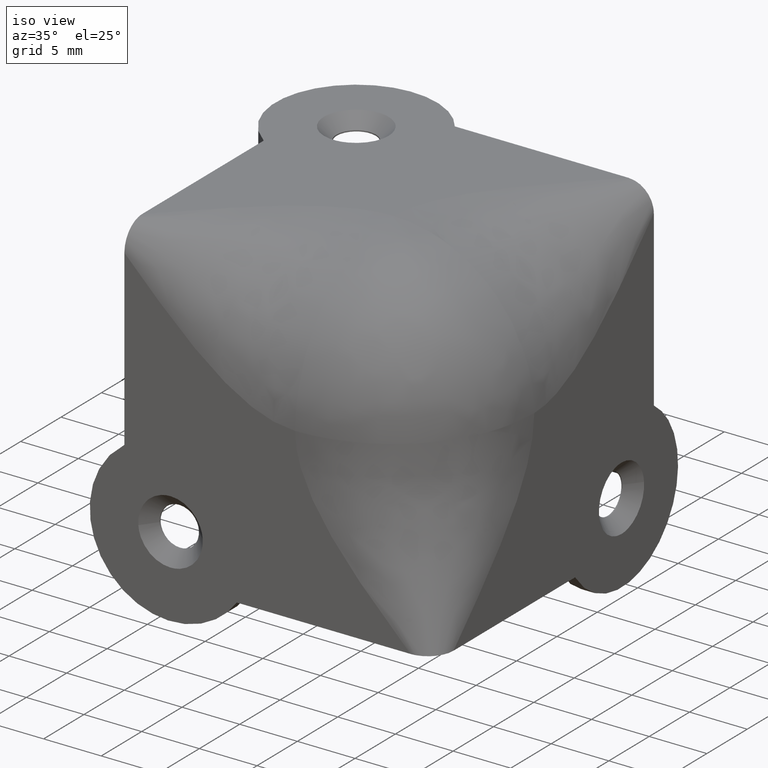
[diagram: clean part render]
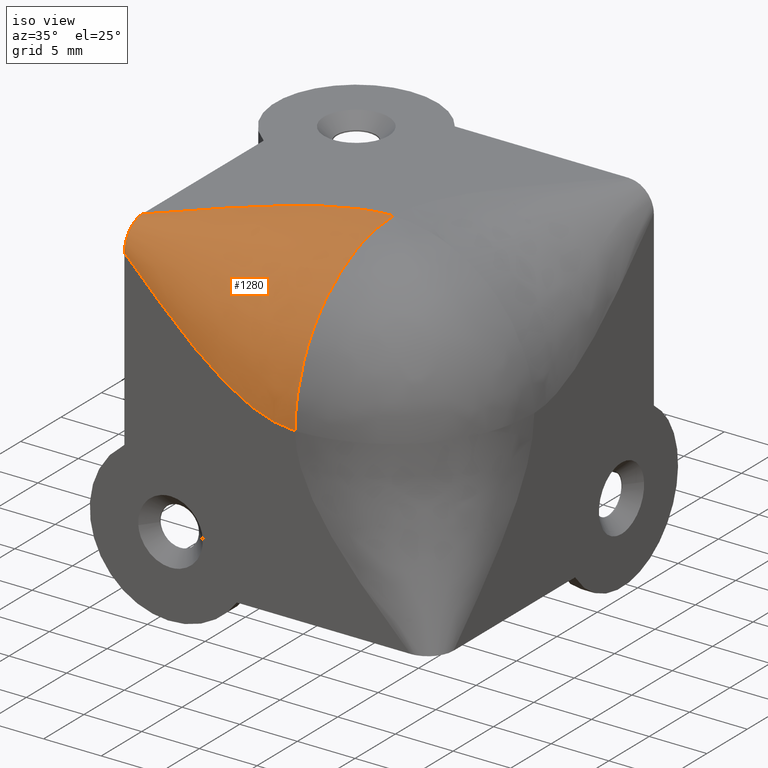
[diagram: same view with one face highlighted and labeled with its STEP entity id]
A machine part, iso view. The second image highlights one B-rep face of the part: STEP entity #1280.
In plain terms, the highlighted face is a freeform B-spline surface patch.
Its self-contained STEP definition (entity closure, byte-faithful):
#1090=CARTESIAN_POINT('',(-12.199999999999999,0.0,17.800000000000001));
#1091=VERTEX_POINT('',#1090);
#1139=CARTESIAN_POINT('',(-12.199999999999999,12.199999999999999,30.0));
#1140=VERTEX_POINT('',#1139);
#1154=CARTESIAN_POINT('',(-12.199999999999999,12.199999999999999,30.0));
#1155=CARTESIAN_POINT('',(-12.199999999999990,0.0,29.999999999999947));
#1156=CARTESIAN_POINT('',(-12.199999999999999,0.0,17.800000000000001));
#1164=(BOUNDED_CURVE()B_SPLINE_CURVE(2,(#1154,#1155,#1156),.UNSPECIFIED.,.F.,.U.)CURVE()GEOMETRIC_REPRESENTATION_ITEM()QUASI_UNIFORM_CURVE()RATIONAL_B_SPLINE_CURVE((1.0,0.707106781186548,1.0))REPRESENTATION_ITEM(''));
#1165=EDGE_CURVE('',#1140,#1091,#1164,.T.);
#1226=CARTESIAN_POINT('',(-27.0,2.200000000000000,30.0));
#1227=CARTESIAN_POINT('',(-27.000000000000004,0.0,29.999999999999947));
#1228=CARTESIAN_POINT('',(-27.0,0.0,27.800000000000001));
#1229=CARTESIAN_POINT('',(-22.066666666666649,7.200000000000000,30.0));
#1230=CARTESIAN_POINT('',(-22.066666666666652,0.0,29.999999999999947));
#1231=CARTESIAN_POINT('',(-22.066666666666649,0.0,22.800000000000001));
#1232=CARTESIAN_POINT('',(-17.133333333333351,12.199999999999999,30.0));
#1233=CARTESIAN_POINT('',(-17.133333333333329,0.0,29.999999999999947));
#1234=CARTESIAN_POINT('',(-17.133333333333351,0.0,17.800000000000001));
#1235=CARTESIAN_POINT('',(-12.199999999999999,12.199999999999999,30.0));
#1236=CARTESIAN_POINT('',(-12.199999999999990,0.0,29.999999999999947));
#1237=CARTESIAN_POINT('',(-12.199999999999999,0.0,17.800000000000001));
#1245=(BOUNDED_SURFACE()B_SPLINE_SURFACE(2,3,((#1226,#1229,#1232,#1235),(#1227,#1230,#1233,#1236),(#1228,#1231,#1234,#1237)),.UNSPECIFIED.,.F.,.F.,.U.)B_SPLINE_SURFACE_WITH_KNOTS((3,3),(4,4),(0.0,20.213621843807040),(0.0,21.072256642324788),.UNSPECIFIED.)GEOMETRIC_REPRESENTATION_ITEM()RATIONAL_B_SPLINE_SURFACE(((1.0,1.0,1.0,1.0),(0.707106781186548,0.707106781186548,0.707106781186548,0.707106781186548),(1.0,1.0,1.0,1.0)))REPRESENTATION_ITEM('')SURFACE());
#1246=CARTESIAN_POINT('',(-27.0,0.0,27.800000000000001));
#1247=VERTEX_POINT('',#1246);
#1248=CARTESIAN_POINT('',(-27.0,2.200000000000000,30.0));
#1249=VERTEX_POINT('',#1248);
#1250=CARTESIAN_POINT('',(-26.999999999999989,0.0,27.799999999999990));
#1251=CARTESIAN_POINT('',(-27.000000000000007,0.0,29.999999999999961));
#1252=CARTESIAN_POINT('',(-26.999999999999989,2.200000000000007,29.999999999999989));
#1260=(BOUNDED_CURVE()B_SPLINE_CURVE(2,(#1250,#1251,#1252),.UNSPECIFIED.,.F.,.U.)CURVE()GEOMETRIC_REPRESENTATION_ITEM()QUASI_UNIFORM_CURVE()RATIONAL_B_SPLINE_CURVE((1.0,0.707106781186548,1.0))REPRESENTATION_ITEM(''));
#1261=EDGE_CURVE('',#1247,#1249,#1260,.T.);
#1262=ORIENTED_EDGE('',*,*,#1261,.F.);
#1263=CARTESIAN_POINT('',(-12.199999999999999,0.0,17.800000000000001));
#1264=CARTESIAN_POINT('',(-17.133333333333351,0.0,17.800000000000001));
#1265=CARTESIAN_POINT('',(-22.066666666666649,0.0,22.800000000000001));
#1266=CARTESIAN_POINT('',(-27.0,0.0,27.800000000000001));
#1267=B_SPLINE_CURVE_WITH_KNOTS('',3,(#1263,#1264,#1265,#1266),.UNSPECIFIED.,.F.,.U.,(4,4),(0.127906976744186,1.0),.UNSPECIFIED.);
#1268=EDGE_CURVE('',#1091,#1247,#1267,.T.);
#1269=ORIENTED_EDGE('',*,*,#1268,.F.);
#1270=ORIENTED_EDGE('',*,*,#1165,.F.);
#1271=CARTESIAN_POINT('',(-27.0,2.200000000000000,30.0));
#1272=CARTESIAN_POINT('',(-22.066666666666649,7.200000000000000,30.0));
#1273=CARTESIAN_POINT('',(-17.133333333333351,12.199999999999999,30.0));
#1274=CARTESIAN_POINT('',(-12.199999999999999,12.199999999999999,30.0));
#1275=B_SPLINE_CURVE_WITH_KNOTS('',3,(#1271,#1272,#1273,#1274),.UNSPECIFIED.,.F.,.U.,(4,4),(0.127906976744186,1.0),.UNSPECIFIED.);
#1276=EDGE_CURVE('',#1249,#1140,#1275,.T.);
#1277=ORIENTED_EDGE('',*,*,#1276,.F.);
#1278=EDGE_LOOP('',(#1262,#1269,#1270,#1277));
#1279=FACE_OUTER_BOUND('',#1278,.T.);
#1280=ADVANCED_FACE('',(#1279),#1245,.T.);